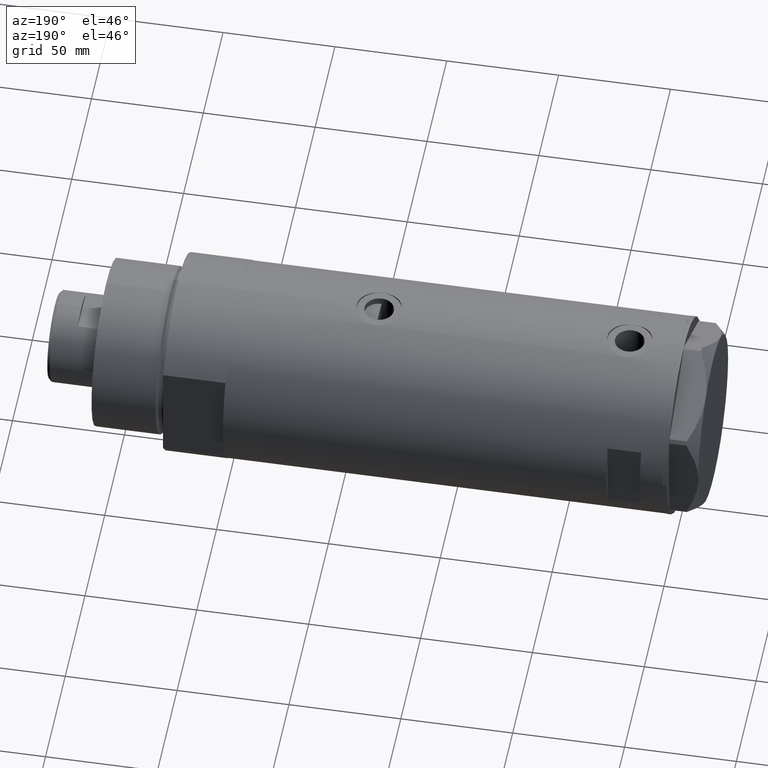
[diagram: clean part render]
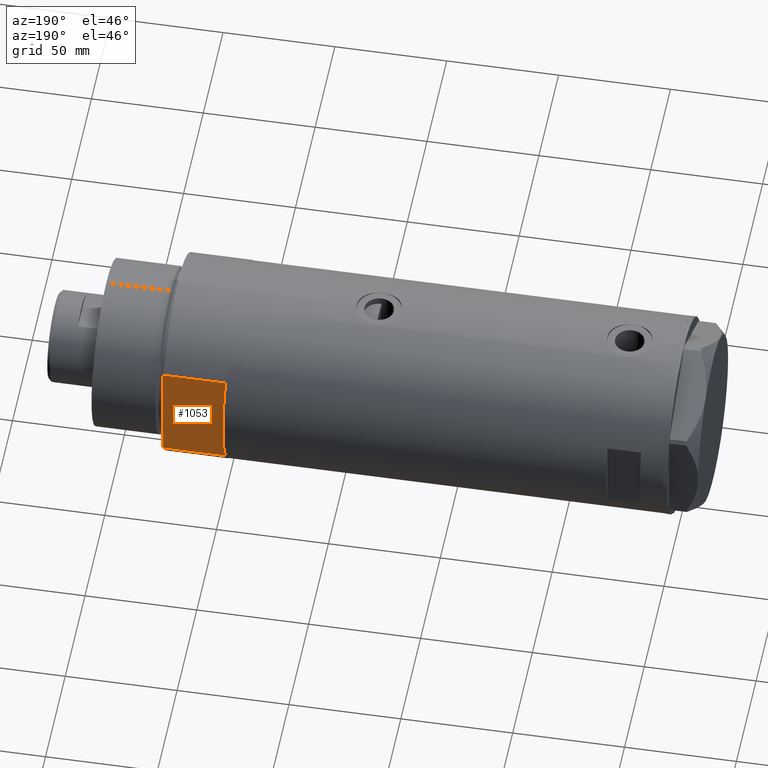
[diagram: same view with one face highlighted and labeled with its STEP entity id]
A machine part, auxiliary view. The second image highlights one B-rep face of the part: STEP entity #1053.
In plain terms, the highlighted planar face has unit normal (0, -1, -0).
Its self-contained STEP definition (entity closure, byte-faithful):
#14 = LINE ( 'NONE', #1722, #4307 ) ;
#137 = CARTESIAN_POINT ( 'NONE',  ( -23.01629857296780557, 37.50000000000000000, 27.89999999999999858 ) ) ;
#154 = DIRECTION ( 'NONE',  ( 0.000000000000000000, -1.000000000000000000, 0.000000000000000000 ) ) ;
#168 = EDGE_CURVE ( 'NONE', #1002, #2764, #1588, .T. ) ;
#232 = CARTESIAN_POINT ( 'NONE',  ( 13.91941090707505957, 37.50000000000000000, 0.000000000000000000 ) ) ;
#357 = CARTESIAN_POINT ( 'NONE',  ( 23.01629857296780557, 37.50000000000000000, 27.89999999999999858 ) ) ;
#365 = DIRECTION ( 'NONE',  ( 1.000000000000000000, 0.000000000000000000, 0.000000000000000000 ) ) ;
#418 = VERTEX_POINT ( 'NONE', #137 ) ;
#506 = FACE_OUTER_BOUND ( 'NONE', #2518, .T. ) ;
#709 = CARTESIAN_POINT ( 'NONE',  ( -23.01629857296780557, 37.50000000000000000, 0.000000000000000000 ) ) ;
#743 = LINE ( 'NONE', #821, #2694 ) ;
#768 = DIRECTION ( 'NONE',  ( 1.000000000000000000, 0.000000000000000000, 0.000000000000000000 ) ) ;
#821 = CARTESIAN_POINT ( 'NONE',  ( -23.01629857296780557, 37.50000000000000000, 0.000000000000000000 ) ) ;
#924 = LINE ( 'NONE', #947, #4076 ) ;
#947 = CARTESIAN_POINT ( 'NONE',  ( -23.01629857296780557, 37.50000000000000000, 0.000000000000000000 ) ) ;
#966 = EDGE_CURVE ( 'NONE', #4079, #2089, #3007, .T. ) ;
#1002 = VERTEX_POINT ( 'NONE', #1075 ) ;
#1053 = ADVANCED_FACE ( 'NONE', ( #506 ), #1904, .F. ) ;
#1075 = CARTESIAN_POINT ( 'NONE',  ( -13.91941090707505957, 37.50000000000000000, 0.000000000000000000 ) ) ;
#1138 = AXIS2_PLACEMENT_3D ( 'NONE', #3302, #154, #1559 ) ;
#1331 = CARTESIAN_POINT ( 'NONE',  ( 23.01629857296780557, 37.50000000000000000, 0.000000000000000000 ) ) ;
#1559 = DIRECTION ( 'NONE',  ( 0.000000000000000000, -0.000000000000000000, -1.000000000000000000 ) ) ;
#1568 = CARTESIAN_POINT ( 'NONE',  ( 0.000000000000000000, 37.50000000000000000, 27.89999999999999858 ) ) ;
#1588 = LINE ( 'NONE', #4448, #4302 ) ;
#1722 = CARTESIAN_POINT ( 'NONE',  ( -23.01629857296780557, 37.50000000000000000, 27.89999999999999858 ) ) ;
#1744 = VECTOR ( 'NONE', #3495, 1000.000000000000000 ) ;
#1890 = ORIENTED_EDGE ( 'NONE', *, *, #3229, .T. ) ;
#1904 = PLANE ( 'NONE',  #1138 ) ;
#1909 = DIRECTION ( 'NONE',  ( 1.000000000000000000, 0.000000000000000000, 0.000000000000000000 ) ) ;
#1925 = VERTEX_POINT ( 'NONE', #3939 ) ;
#1960 = VECTOR ( 'NONE', #365, 1000.000000000000000 ) ;
#2085 = LINE ( 'NONE', #3817, #1960 ) ;
#2089 = VERTEX_POINT ( 'NONE', #357 ) ;
#2137 = ORIENTED_EDGE ( 'NONE', *, *, #966, .F. ) ;
#2255 = ORIENTED_EDGE ( 'NONE', *, *, #3959, .F. ) ;
#2435 = EDGE_CURVE ( 'NONE', #418, #4473, #14, .T. ) ;
#2518 = EDGE_LOOP ( 'NONE', ( #3139, #3753, #2137, #3746, #3286, #2255, #1890 ) ) ;
#2578 = DIRECTION ( 'NONE',  ( -0.000000000000000000, -0.000000000000000000, 1.000000000000000000 ) ) ;
#2694 = VECTOR ( 'NONE', #2578, 1000.000000000000000 ) ;
#2743 = EDGE_CURVE ( 'NONE', #2764, #4079, #924, .T. ) ;
#2764 = VERTEX_POINT ( 'NONE', #232 ) ;
#3007 = LINE ( 'NONE', #1331, #4433 ) ;
#3139 = ORIENTED_EDGE ( 'NONE', *, *, #2435, .T. ) ;
#3229 = EDGE_CURVE ( 'NONE', #1925, #418, #743, .T. ) ;
#3286 = ORIENTED_EDGE ( 'NONE', *, *, #168, .F. ) ;
#3302 = CARTESIAN_POINT ( 'NONE',  ( -23.01629857296780557, 37.50000000000000000, 0.000000000000000000 ) ) ;
#3495 = DIRECTION ( 'NONE',  ( 1.000000000000000000, 0.000000000000000000, 0.000000000000000000 ) ) ;
#3746 = ORIENTED_EDGE ( 'NONE', *, *, #2743, .F. ) ;
#3749 = EDGE_CURVE ( 'NONE', #4473, #2089, #2085, .T. ) ;
#3750 = DIRECTION ( 'NONE',  ( 1.000000000000000000, 0.000000000000000000, 0.000000000000000000 ) ) ;
#3753 = ORIENTED_EDGE ( 'NONE', *, *, #3749, .T. ) ;
#3817 = CARTESIAN_POINT ( 'NONE',  ( -23.01629857296780557, 37.50000000000000000, 27.89999999999999858 ) ) ;
#3939 = CARTESIAN_POINT ( 'NONE',  ( -23.01629857296780557, 37.50000000000000000, 0.000000000000000000 ) ) ;
#3959 = EDGE_CURVE ( 'NONE', #1925, #1002, #4193, .T. ) ;
#4007 = CARTESIAN_POINT ( 'NONE',  ( 23.01629857296780557, 37.50000000000000000, 0.000000000000000000 ) ) ;
#4076 = VECTOR ( 'NONE', #3750, 1000.000000000000000 ) ;
#4079 = VERTEX_POINT ( 'NONE', #4007 ) ;
#4130 = DIRECTION ( 'NONE',  ( -0.000000000000000000, -0.000000000000000000, 1.000000000000000000 ) ) ;
#4193 = LINE ( 'NONE', #709, #1744 ) ;
#4302 = VECTOR ( 'NONE', #1909, 1000.000000000000000 ) ;
#4307 = VECTOR ( 'NONE', #768, 1000.000000000000000 ) ;
#4433 = VECTOR ( 'NONE', #4130, 1000.000000000000000 ) ;
#4448 = CARTESIAN_POINT ( 'NONE',  ( -23.01629857296780557, 37.50000000000000000, 0.000000000000000000 ) ) ;
#4473 = VERTEX_POINT ( 'NONE', #1568 ) ;